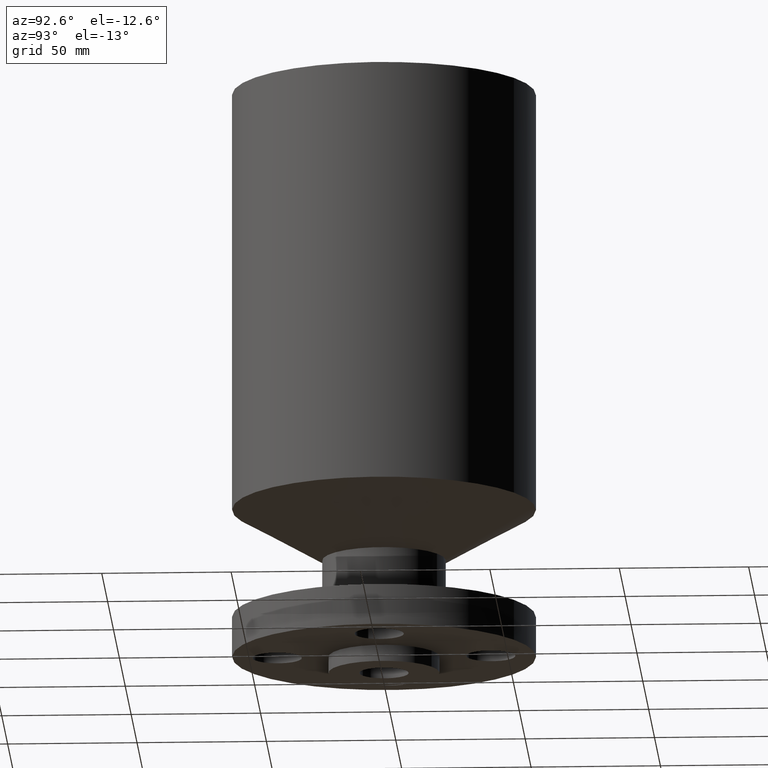
[diagram: clean part render]
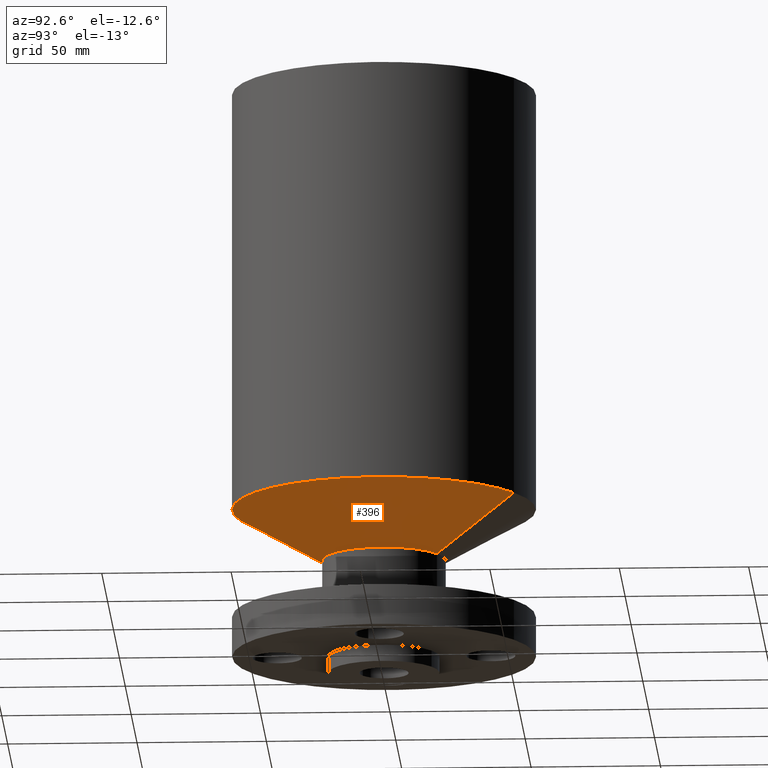
[diagram: same view with one face highlighted and labeled with its STEP entity id]
A machine part, auxiliary view. The second image highlights one B-rep face of the part: STEP entity #396.
In plain terms, the highlighted conical surface has half-angle 60 deg.
Its self-contained STEP definition (entity closure, byte-faithful):
#337=AXIS2_PLACEMENT_3D('Circle Axis2P3D',#335,#336,$) ;
#369=AXIS2_PLACEMENT_3D('Cone Axis2P3D',#366,#367,#368) ;
#380=AXIS2_PLACEMENT_3D('Circle Axis2P3D',#378,#379,$) ;
#332=CARTESIAN_POINT('Vertex',(0.45066000629,0.82492760818,1.50000000001)) ;
#335=CARTESIAN_POINT('Axis2P3D Location',(0.,0.,1.50000000001)) ;
#339=CARTESIAN_POINT('Vertex',(-0.45066000629,-0.82492760818,1.50000000001)) ;
#366=CARTESIAN_POINT('Axis2P3D Location',(0.,0.,1.50000000001)) ;
#371=CARTESIAN_POINT('Line Origine',(0.779066500235,1.42607166308,1.8954849344)) ;
#375=CARTESIAN_POINT('Vertex',(1.10747299418,2.02721571797,2.2909698688)) ;
#378=CARTESIAN_POINT('Axis2P3D Location',(0.,0.,2.2909698688)) ;
#382=CARTESIAN_POINT('Vertex',(-1.10747299418,-2.02721571797,2.2909698688)) ;
#385=CARTESIAN_POINT('Line Origine',(-0.779066500235,-1.42607166308,1.8954849344)) ;
#336=DIRECTION('Axis2P3D Direction',(0.,0.,-0.0393700787402)) ;
#367=DIRECTION('Axis2P3D Direction',(-0.,-0.,0.0393700787402)) ;
#368=DIRECTION('Axis2P3D XDirection',(0.0188750212049,0.0345504945626,0.)) ;
#372=DIRECTION('Vector Direction',(0.0163462478604,0.0299216060045,0.0196850393701)) ;
#379=DIRECTION('Axis2P3D Direction',(-0.,0.,0.0393700787402)) ;
#386=DIRECTION('Vector Direction',(-0.0163462478604,-0.0299216060045,0.0196850393701)) ;
#373=VECTOR('Line Direction',#372,0.0393700787402) ;
#387=VECTOR('Line Direction',#386,0.0393700787402) ;
#391=ORIENTED_EDGE('',*,*,#341,.F.) ;
#392=ORIENTED_EDGE('',*,*,#377,.T.) ;
#393=ORIENTED_EDGE('',*,*,#384,.T.) ;
#394=ORIENTED_EDGE('',*,*,#389,.F.) ;
#396=ADVANCED_FACE('PartBody',(#395),#370,.T.) ;
#338=CIRCLE('generated circle',#337,0.940000000004) ;
#381=CIRCLE('generated circle',#380,2.31000000001) ;
#370=CONICAL_SURFACE('Cone',#369,0.940000000004,1.0471975512) ;
#341=EDGE_CURVE('',#333,#340,#338,.T.) ;
#377=EDGE_CURVE('',#333,#376,#374,.T.) ;
#384=EDGE_CURVE('',#376,#383,#381,.F.) ;
#389=EDGE_CURVE('',#340,#383,#388,.T.) ;
#390=EDGE_LOOP('',(#391,#392,#393,#394)) ;
#395=FACE_OUTER_BOUND('',#390,.T.) ;
#374=LINE('Line',#371,#373) ;
#388=LINE('Line',#385,#387) ;
#333=VERTEX_POINT('',#332) ;
#340=VERTEX_POINT('',#339) ;
#376=VERTEX_POINT('',#375) ;
#383=VERTEX_POINT('',#382) ;